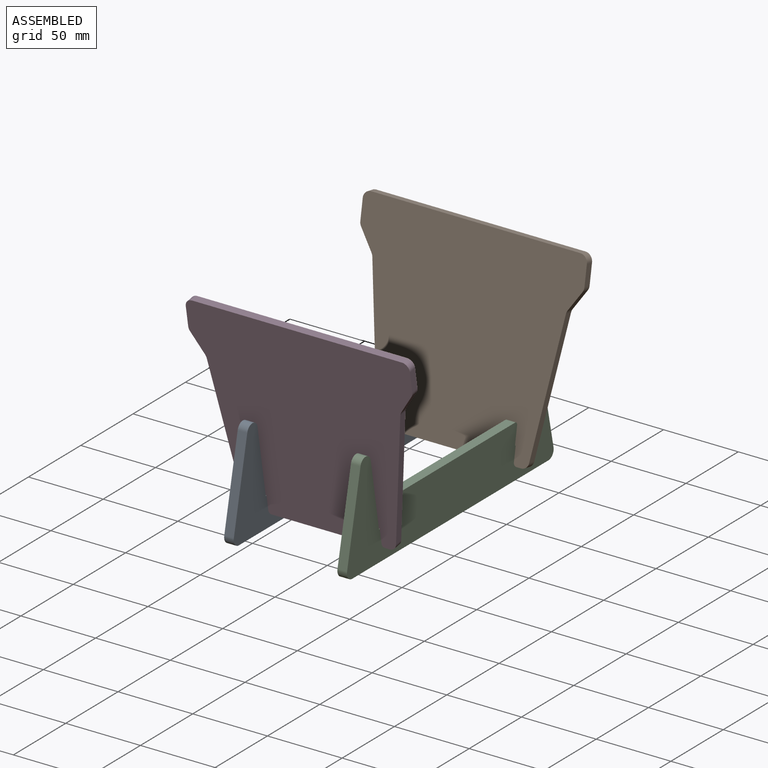
[diagram: assembled view]
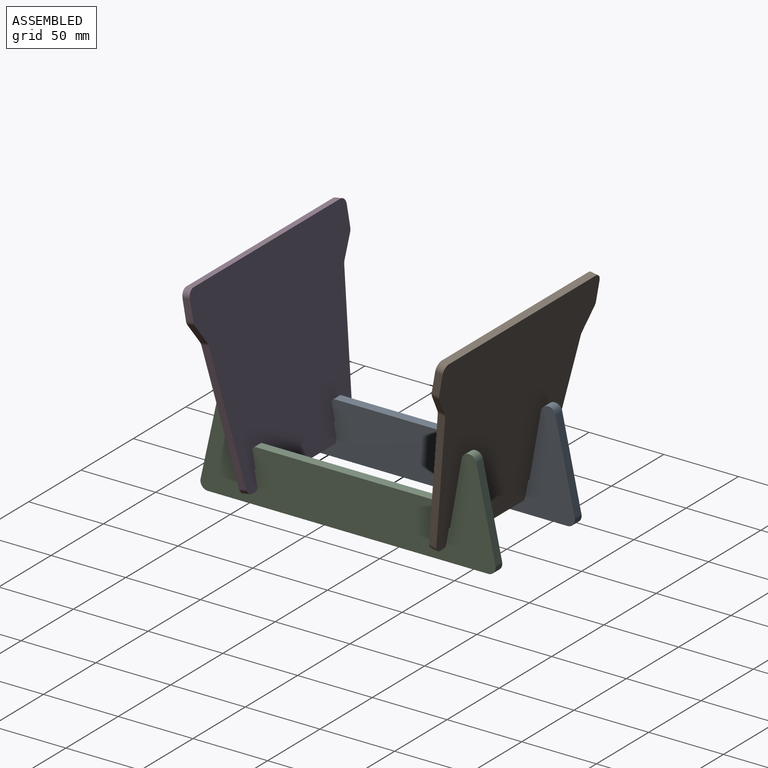
[diagram: assembled view, second angle]
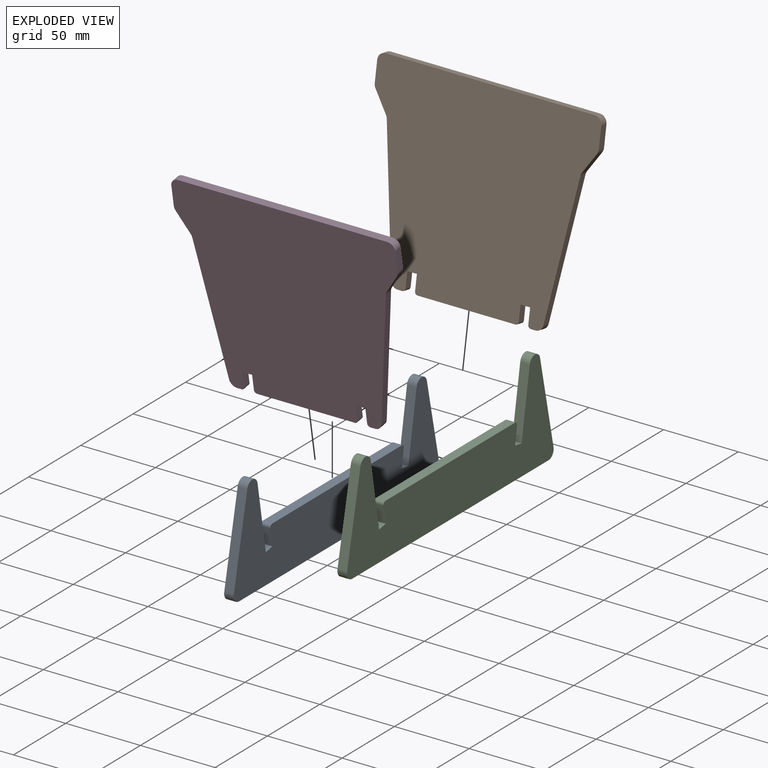
[diagram: exploded view]
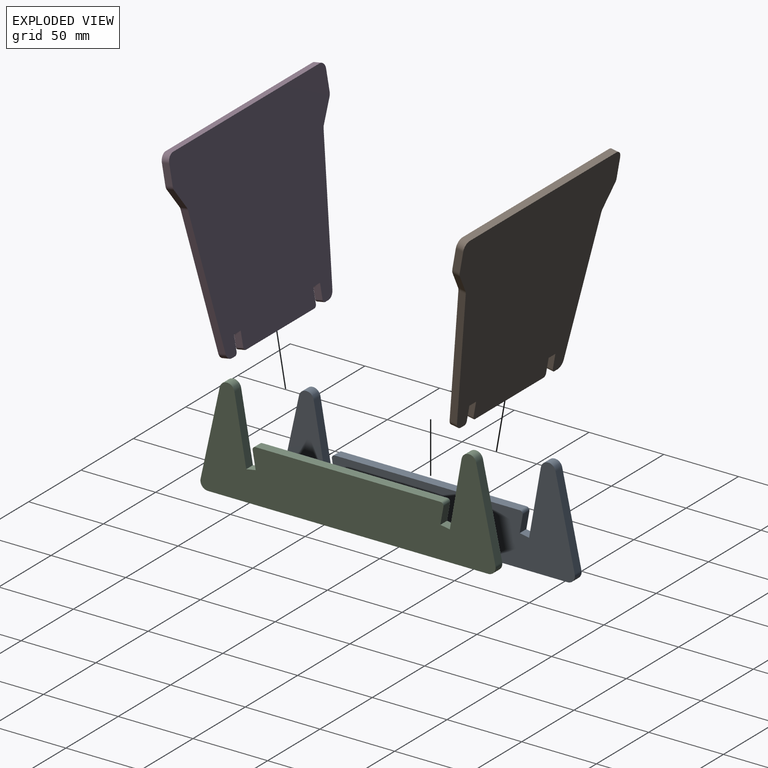
[diagram: exploded view, second angle]
ASSEMBLY  parts=4 mates=3
PART A: 18 faces, bbox 6.4x197.6x68.9 mm
  f0: plane 44.8x7.9mm, normal (0,0.98,0.17), area 291.2mm2, adj f1,f15,f16,f17
  f1: cylinder r=5mm len=9.81mm, axis (-1,0,0), area 88.1mm2, adj f0,f2,f16,f17
  f2: plane 58.93x12.86mm, normal (0,-0.98,0.21), area 386mm2, adj f1,f3,f16,f17
  f3: cylinder r=5mm len=6.4mm, axis (-1,0,0), area 57.1mm2, adj f2,f4,f16,f17
  f4: plane 187.58x6.4mm, normal (0,0,-1), area 1200.5mm2, adj f3,f5,f16,f17
  f5: cylinder r=5mm len=6.4mm, axis (-1,0,0), area 57.1mm2, adj f4,f6,f16,f17
  f6: plane 58.93x12.86mm, normal (0,0.98,0.21), area 386mm2, adj f5,f7,f16,f17
  f7: cylinder r=5mm len=9.81mm, axis (-1,0,0), area 88.1mm2, adj f6,f8,f16,f17
  f8: plane 44.8x7.9mm, normal (0,-0.98,0.17), area 291.2mm2, adj f7,f9,f16,f17
  f9: plane 6.4x6.3mm, normal (0,0.17,0.98), area 41mm2, adj f8,f10,f16,f17
  f10: plane 11.54x6.4mm, normal (0,0.98,-0.17), area 75mm2, adj f9,f11,f16,f17
  f11: cylinder r=2mm len=6.4mm, axis (-1,0,0), area 22.3mm2, adj f10,f12,f16,f17
  f12: plane 123.75x6.4mm, normal (0,0,1), area 792mm2, adj f11,f13,f16,f17
  f13: cylinder r=2mm len=6.4mm, axis (-1,0,0), area 22.3mm2, adj f12,f14,f16,f17
  f14: plane 11.54x6.4mm, normal (0,-0.98,-0.17), area 75mm2, adj f13,f15,f16,f17
  f15: plane 6.4x6.3mm, normal (0,-0.17,0.98), area 41mm2, adj f0,f14,f16,f17
  f16: plane 197.58x68.93mm, normal (1,0,0), area 7523.9mm2, adj f0,f1,f2,f3,f4,f5,f6,f7
  f17: plane 197.58x68.93mm, normal (-1,0,0), area 7523.9mm2, adj f0,f1,f2,f3,f4,f5,f6,f7
PART B: 30 faces, bbox 150x5x130 mm
  f0: plane 13.06x8.62mm, normal (-0.83,0,-0.55), area 78.2mm2, adj f1,f27,f28,f29
  f1: cylinder r=5mm len=5mm, axis (0,1,0), area 10.8mm2, adj f0,f2,f28,f29
  f2: plane 89.45x13.76mm, normal (-0.99,0,-0.15), area 452.5mm2, adj f1,f3,f28,f29
  f3: cylinder r=5mm len=5mm, axis (0,1,0), area 35.5mm2, adj f2,f4,f28,f29
  f4: plane 5x3mm, normal (0,0,-1), area 15mm2, adj f3,f5,f28,f29
  f5: cylinder r=2mm len=5mm, axis (0,1,0), area 15.7mm2, adj f4,f6,f28,f29
  f6: plane 10x5mm, normal (1,0,0), area 50mm2, adj f5,f7,f28,f29
  f7: plane 6.4x5mm, normal (0,0,-1), area 32mm2, adj f6,f8,f28,f29
  f8: plane 10x5mm, normal (-1,0,0), area 50mm2, adj f7,f9,f28,f29
  f9: cylinder r=2mm len=5mm, axis (0,1,0), area 15.7mm2, adj f8,f10,f28,f29
  f10: plane 65.38x5mm, normal (0,0,-1), area 326.9mm2, adj f9,f11,f28,f29
  f11: cylinder r=2mm len=5mm, axis (0,1,0), area 15.7mm2, adj f10,f12,f28,f29
  f12: plane 10x5mm, normal (1,0,0), area 50mm2, adj f11,f13,f28,f29
  f13: plane 6.4x5mm, normal (0,0,-1), area 32mm2, adj f12,f14,f28,f29
  f14: plane 10x5mm, normal (-1,0,0), area 50mm2, adj f13,f15,f28,f29
  f15: cylinder r=2mm len=5mm, axis (0,1,0), area 15.7mm2, adj f14,f16,f28,f29
  f16: plane 5x3mm, normal (0,0,-1), area 15mm2, adj f15,f17,f28,f29
  f17: cylinder r=5mm len=5mm, axis (0,1,0), area 35.5mm2, adj f16,f18,f28,f29
  f18: plane 89.45x13.76mm, normal (0.99,0,-0.15), area 452.5mm2, adj f17,f19,f28,f29
  f19: cylinder r=5mm len=5mm, axis (0,1,0), area 10.8mm2, adj f18,f20,f28,f29
  f20: plane 13.06x8.62mm, normal (0.83,0,-0.55), area 78.2mm2, adj f19,f21,f28,f29
  f21: cylinder r=5mm len=5mm, axis (0,1,0), area 14.6mm2, adj f20,f22,f28,f29
  f22: plane 13.5x5mm, normal (1,0,0), area 67.5mm2, adj f21,f23,f28,f29
  f23: cylinder r=5mm len=5mm, axis (0,1,0), area 39.3mm2, adj f22,f24,f28,f29
  f24: plane 140x5mm, normal (0,0,1), area 700mm2, adj f23,f25,f28,f29
  f25: cylinder r=5mm len=5mm, axis (0,1,0), area 39.3mm2, adj f24,f26,f28,f29
  f26: plane 13.5x5mm, normal (-1,0,0), area 67.5mm2, adj f25,f27,f28,f29
  f27: cylinder r=5mm len=5mm, axis (0,1,0), area 14.6mm2, adj f0,f26,f28,f29
  f28: plane 150x130mm, normal (0,-1,0), area 15886.3mm2, adj f0,f1,f2,f3,f4,f5,f6,f7
  f29: plane 150x130mm, normal (0,1,0), area 15886.3mm2, adj f0,f1,f2,f3,f4,f5,f6,f7
PART C: same geometry as A
PART D: same geometry as B
PLACE A t=(-19.95,57.34,0.43)mm
PLACE B rot(axis=(-1,0,0),10deg) t=(21.14,122.68,8.73)mm
PLACE C t=(55.82,57.34,0.43)mm fixed
PLACE D rot(axis=(1,0,0),10deg) t=(21.14,-3.08,9.6)mm
MATE fastened C.f9 <-> B.f13  axis (0,0.17,0.98) through (59.02,122.3,20.98)mm
MATE fastened A.f9 <-> B.f7  axis (0,0.17,0.98) through (-16.75,122.3,20.98)mm
MATE fastened D.f13 <-> C.f15  axis (0,0.17,-0.98) through (59.02,-7.62,20.98)mm
